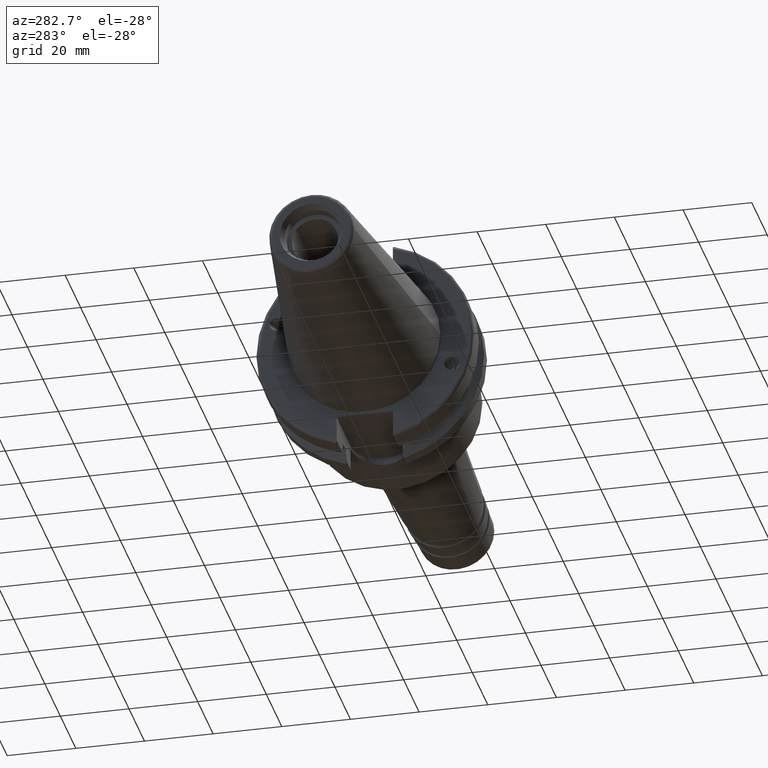
[diagram: clean part render]
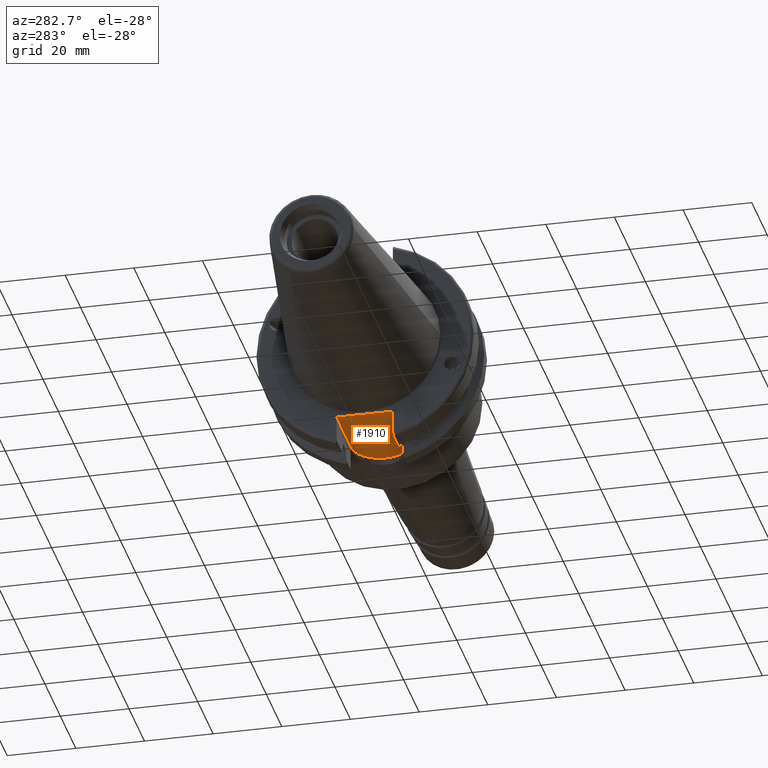
[diagram: same view with one face highlighted and labeled with its STEP entity id]
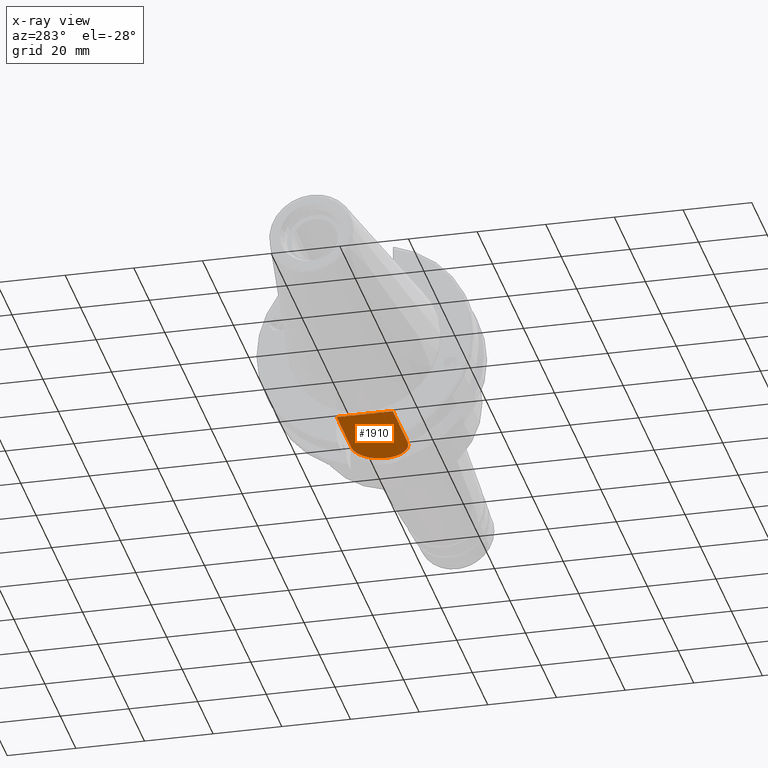
[diagram: x-ray of the same camera — body ghosted, the highlighted face saturated]
A machine part, auxiliary view. The second image highlights one B-rep face of the part: STEP entity #1910.
The next image is the same camera in x-ray: the body ghosted, the highlighted face saturated — about 0% of this face is hidden behind the body in this view.
In plain terms, the highlighted planar face has unit normal (0, 0, 1).
Its self-contained STEP definition (entity closure, byte-faithful):
#71=PLANE('',#2172);
#265=FACE_OUTER_BOUND('',#385,.T.);
#385=EDGE_LOOP('',(#1686,#1687,#1688,#1689));
#476=LINE('',#3513,#574);
#479=LINE('',#3552,#577);
#492=LINE('',#3640,#590);
#574=VECTOR('',#2648,10.);
#577=VECTOR('',#2659,10.);
#590=VECTOR('',#2680,10.);
#616=CIRCLE('',#1972,8.19);
#747=VERTEX_POINT('',#2931);
#748=VERTEX_POINT('',#2933);
#877=VERTEX_POINT('',#3494);
#886=VERTEX_POINT('',#3511);
#945=EDGE_CURVE('',#748,#747,#616,.T.);
#1139=EDGE_CURVE('',#886,#877,#476,.T.);
#1147=EDGE_CURVE('',#886,#748,#479,.T.);
#1171=EDGE_CURVE('',#747,#877,#492,.T.);
#1686=ORIENTED_EDGE('',*,*,#1139,.F.);
#1687=ORIENTED_EDGE('',*,*,#1147,.T.);
#1688=ORIENTED_EDGE('',*,*,#945,.T.);
#1689=ORIENTED_EDGE('',*,*,#1171,.T.);
#1910=ADVANCED_FACE('',(#265),#71,.F.);
#1972=AXIS2_PLACEMENT_3D('',#2934,#2243,#2244);
#2172=AXIS2_PLACEMENT_3D('',#3723,#2721,#2722);
#2243=DIRECTION('center_axis',(0.,0.,-1.));
#2244=DIRECTION('ref_axis',(0.,1.,0.));
#2648=DIRECTION('',(0.,-1.,0.));
#2659=DIRECTION('',(1.,-3.49676543189026E-16,0.));
#2680=DIRECTION('',(-1.,0.,0.));
#2721=DIRECTION('center_axis',(0.,0.,1.));
#2722=DIRECTION('ref_axis',(1.,0.,0.));
#2931=CARTESIAN_POINT('',(20.05,-8.19,-22.6));
#2933=CARTESIAN_POINT('',(20.05,8.19,-22.6));
#2934=CARTESIAN_POINT('Origin',(20.05,-3.91452606313721E-16,-22.6));
#3494=CARTESIAN_POINT('',(0.999999999999999,-8.19,-22.6));
#3511=CARTESIAN_POINT('',(0.999999999999999,8.19000000000001,-22.6));
#3513=CARTESIAN_POINT('',(0.999999999999999,15.875,-22.6));
#3552=CARTESIAN_POINT('',(0.999999999999999,8.19000000000001,-22.6));
#3640=CARTESIAN_POINT('',(20.05,-8.19,-22.6));
#3723=CARTESIAN_POINT('Origin',(14.62,-5.55111512312578E-16,-22.6));